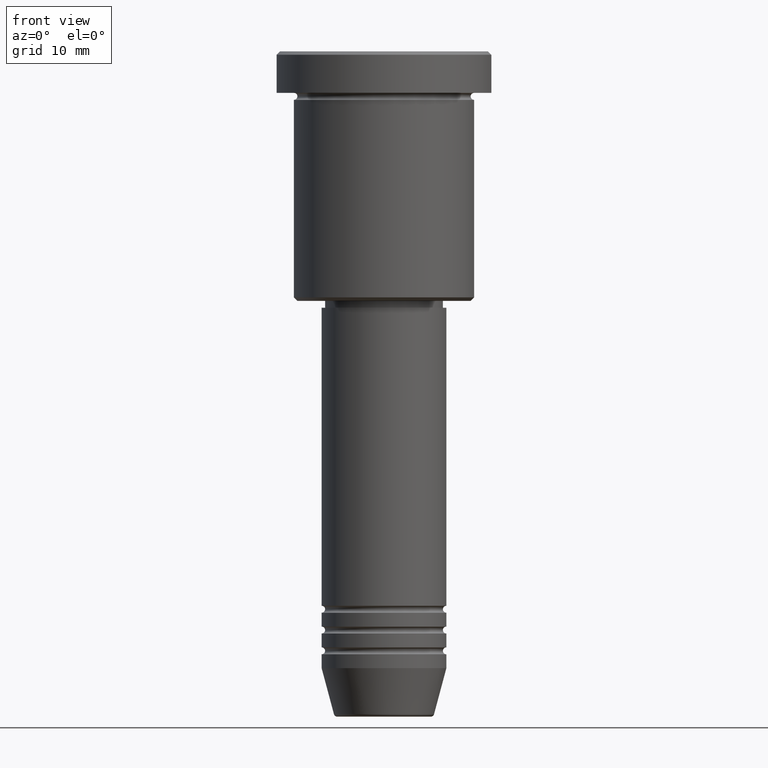
[diagram: clean part render]
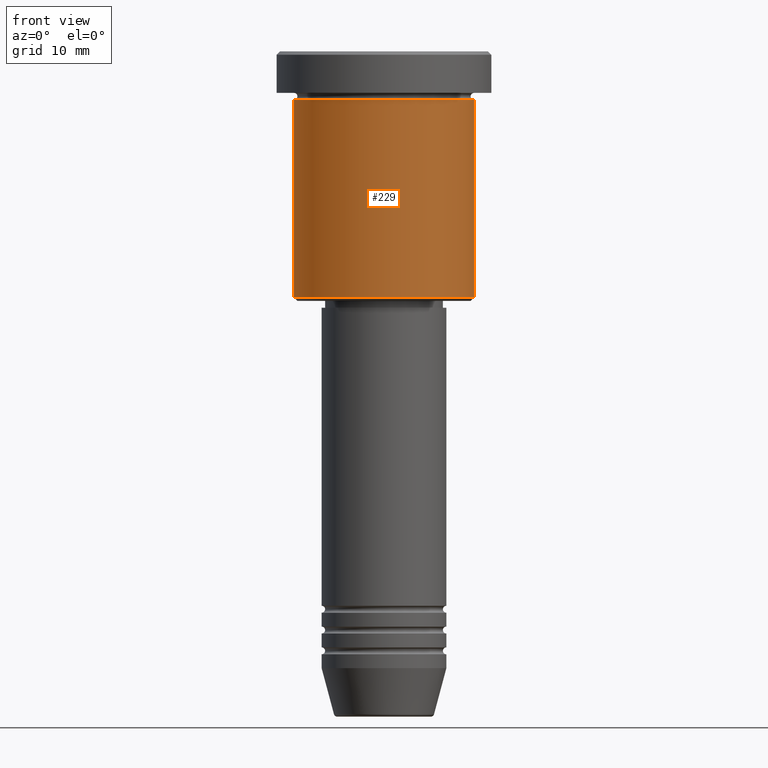
[diagram: same view with one face highlighted and labeled with its STEP entity id]
A machine part, front view. The second image highlights one B-rep face of the part: STEP entity #229.
In plain terms, the highlighted cylindrical surface (partial cylindrical patch) has radius 13 mm, axis along (-0, -0, 1).
Its self-contained STEP definition (entity closure, byte-faithful):
#5 = CARTESIAN_POINT ( 'NONE',  ( -13.00000000000000000, 1.592040838891559095E-15, -6.999999999999995559 ) ) ;
#16 = EDGE_CURVE ( 'NONE', #147, #82, #499, .T. ) ;
#62 = DIRECTION ( 'NONE',  ( -0.000000000000000000, -0.000000000000000000, 1.000000000000000000 ) ) ;
#77 = VERTEX_POINT ( 'NONE', #180 ) ;
#82 = VERTEX_POINT ( 'NONE', #5 ) ;
#88 = AXIS2_PLACEMENT_3D ( 'NONE', #605, #503, #1137 ) ;
#131 = EDGE_CURVE ( 'NONE', #1094, #77, #305, .T. ) ;
#146 = EDGE_LOOP ( 'NONE', ( #781, #1062, #923, #566 ) ) ;
#147 = VERTEX_POINT ( 'NONE', #591 ) ;
#180 = CARTESIAN_POINT ( 'NONE',  ( 13.00000000000000000, 0.000000000000000000, -6.999999999999995559 ) ) ;
#229 = ADVANCED_FACE ( 'NONE', ( #949 ), #495, .T. ) ;
#296 = DIRECTION ( 'NONE',  ( -0.000000000000000000, -0.000000000000000000, 1.000000000000000000 ) ) ;
#305 = LINE ( 'NONE', #506, #531 ) ;
#400 = CARTESIAN_POINT ( 'NONE',  ( 13.00000000000000000, 0.000000000000000000, -35.50000000000001421 ) ) ;
#437 = CIRCLE ( 'NONE', #597, 13.00000000000000000 ) ;
#473 = AXIS2_PLACEMENT_3D ( 'NONE', #588, #62, #1118 ) ;
#492 = DIRECTION ( 'NONE',  ( -0.000000000000000000, -0.000000000000000000, 1.000000000000000000 ) ) ;
#495 = CYLINDRICAL_SURFACE ( 'NONE', #88, 13.00000000000000000 ) ;
#499 = LINE ( 'NONE', #966, #704 ) ;
#503 = DIRECTION ( 'NONE',  ( -0.000000000000000000, -0.000000000000000000, 1.000000000000000000 ) ) ;
#506 = CARTESIAN_POINT ( 'NONE',  ( 13.00000000000000000, 0.000000000000000000, 0.000000000000000000 ) ) ;
#524 = CARTESIAN_POINT ( 'NONE',  ( 0.000000000000000000, 0.000000000000000000, -35.50000000000001421 ) ) ;
#531 = VECTOR ( 'NONE', #891, 1000.000000000000000 ) ;
#566 = ORIENTED_EDGE ( 'NONE', *, *, #718, .F. ) ;
#574 = CIRCLE ( 'NONE', #473, 13.00000000000000000 ) ;
#588 = CARTESIAN_POINT ( 'NONE',  ( 0.000000000000000000, 0.000000000000000000, -6.999999999999995559 ) ) ;
#591 = CARTESIAN_POINT ( 'NONE',  ( -13.00000000000000000, 1.592040838891559095E-15, -35.50000000000001421 ) ) ;
#597 = AXIS2_PLACEMENT_3D ( 'NONE', #524, #492, #864 ) ;
#605 = CARTESIAN_POINT ( 'NONE',  ( 0.000000000000000000, 0.000000000000000000, 0.000000000000000000 ) ) ;
#704 = VECTOR ( 'NONE', #296, 1000.000000000000000 ) ;
#718 = EDGE_CURVE ( 'NONE', #82, #77, #574, .T. ) ;
#781 = ORIENTED_EDGE ( 'NONE', *, *, #16, .F. ) ;
#785 = EDGE_CURVE ( 'NONE', #147, #1094, #437, .T. ) ;
#864 = DIRECTION ( 'NONE',  ( -1.000000000000000000, 0.000000000000000000, 0.000000000000000000 ) ) ;
#891 = DIRECTION ( 'NONE',  ( -0.000000000000000000, -0.000000000000000000, 1.000000000000000000 ) ) ;
#923 = ORIENTED_EDGE ( 'NONE', *, *, #131, .T. ) ;
#949 = FACE_OUTER_BOUND ( 'NONE', #146, .T. ) ;
#966 = CARTESIAN_POINT ( 'NONE',  ( -13.00000000000000000, 1.592040838891559095E-15, 0.000000000000000000 ) ) ;
#1062 = ORIENTED_EDGE ( 'NONE', *, *, #785, .T. ) ;
#1094 = VERTEX_POINT ( 'NONE', #400 ) ;
#1118 = DIRECTION ( 'NONE',  ( 1.000000000000000000, 0.000000000000000000, 0.000000000000000000 ) ) ;
#1137 = DIRECTION ( 'NONE',  ( 1.000000000000000000, 0.000000000000000000, 0.000000000000000000 ) ) ;